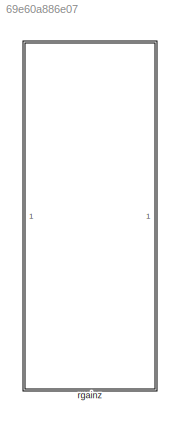
MODEL slx_69e60a886e07
KIND library
CONFIG AbsTol = auto
CONFIG EnableMultiTasking = off
CONFIG FixedStep = auto
CONFIG MaxStep = auto
CONFIG MinStep = auto
CONFIG RelTol = 1e-3
CONFIG SampleTimeConstraint = Unconstrained
CONFIG SolverName = VariableStepAuto
CONFIG StartTime = 0.0
CONFIG StopTime = 10.0
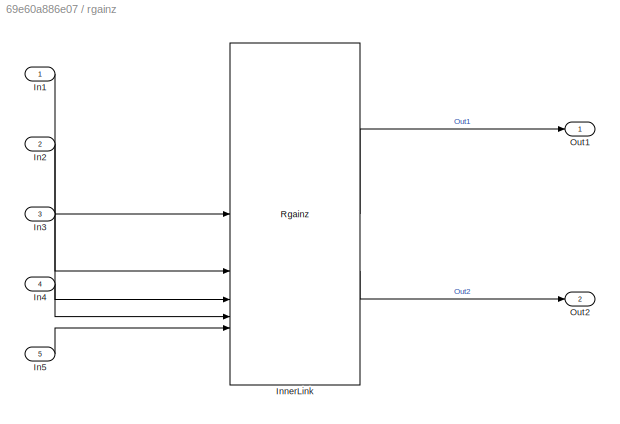
BLOCK [SubSystem] rgainz
BLOCK [Inport] rgainz/In1
BLOCK [Inport] rgainz/In2
  Port = 2
BLOCK [Inport] rgainz/In3
  Port = 3
BLOCK [Inport] rgainz/In4
  Port = 4
BLOCK [Inport] rgainz/In5
  Port = 5
BLOCK [Reference] rgainz/InnerLink  REF=RgainzBtc/Rgainz
  SourceBlock = RgainzBtc/Rgainz
  SourceProductName = Bose Blocklib
  SourceType = Chimes Rgainz
BLOCK [Outport] rgainz/Out1
BLOCK [Outport] rgainz/Out2
  Port = 2
LINE rgainz/In1:1 -> rgainz/InnerLink:1
LINE rgainz/In2:1 -> rgainz/InnerLink:2
LINE rgainz/In3:1 -> rgainz/InnerLink:3
LINE rgainz/In4:1 -> rgainz/InnerLink:4
LINE rgainz/In5:1 -> rgainz/InnerLink:5
LINE rgainz/InnerLink:1 -> rgainz/Out1:1
LINE rgainz/InnerLink:2 -> rgainz/Out2:1
